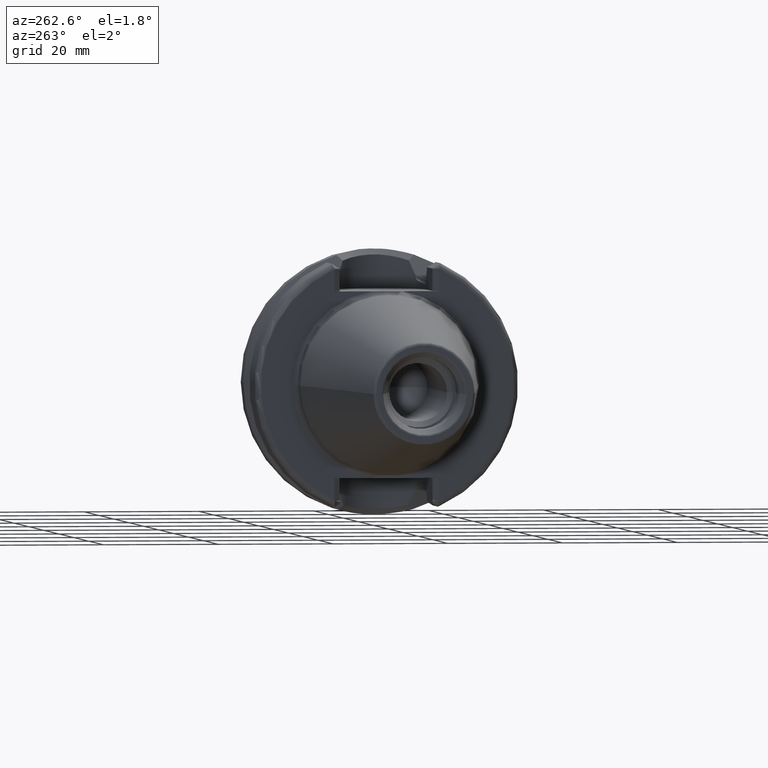
[diagram: clean part render]
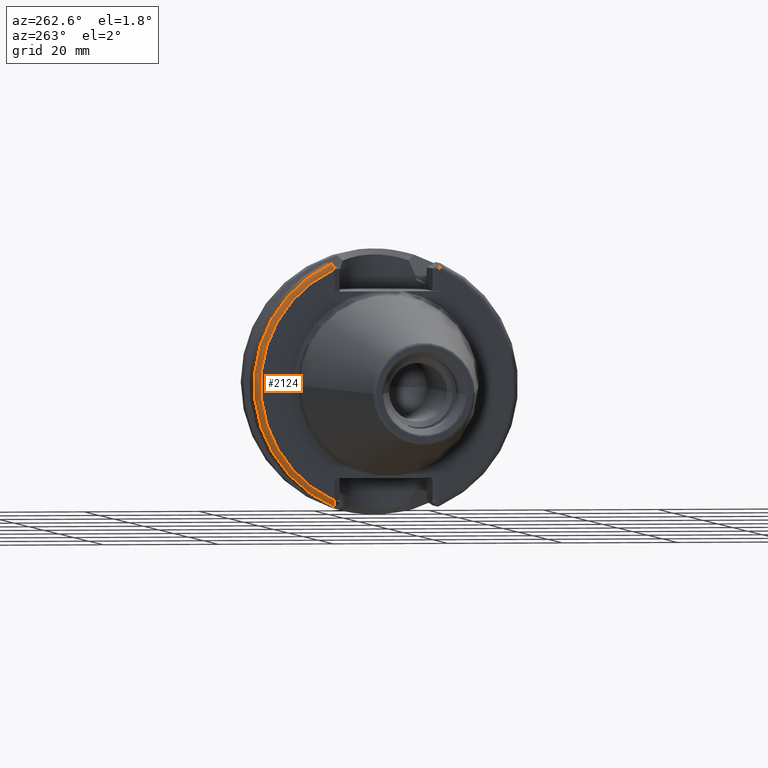
[diagram: same view with one face highlighted and labeled with its STEP entity id]
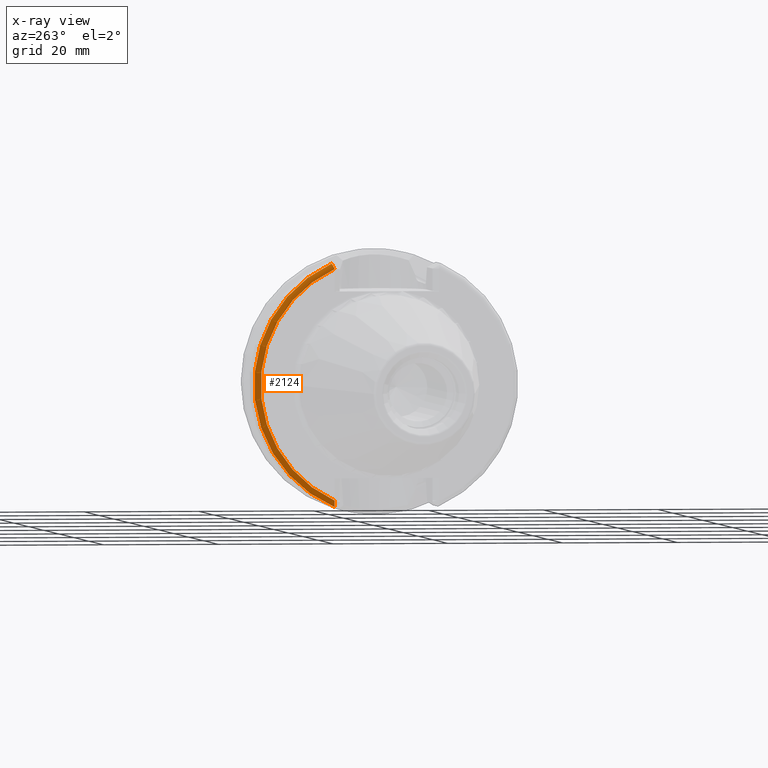
[diagram: x-ray of the same camera — body ghosted, the highlighted face saturated]
A machine part, auxiliary view. The second image highlights one B-rep face of the part: STEP entity #2124.
The next image is the same camera in x-ray: the body ghosted, the highlighted face saturated — about 0% of this face is hidden behind the body in this view.
In plain terms, the highlighted toroidal blend (fillet) surface has major radius 21.99 mm and minor (blend) radius 1 mm.
Its self-contained STEP definition (entity closure, byte-faithful):
#208=CARTESIAN_POINT('',(3.E0,0.E0,0.E0));
#209=DIRECTION('',(-1.E0,0.E0,0.E0));
#210=DIRECTION('',(0.E0,4.135970895862E-1,9.104600197075E-1));
#211=AXIS2_PLACEMENT_3D('',#208,#209,#210);
#582=CARTESIAN_POINT('',(2.999999972701E0,9.014923952472E0,-2.114877606078E1));
#583=CARTESIAN_POINT('',(2.933097251829E0,9.014825251737E0,-2.114881813308E1));
#584=CARTESIAN_POINT('',(2.795803887151E0,9.016909789050E0,-2.113328869981E1));
#585=CARTESIAN_POINT('',(2.588906338275E0,9.027264868146E0,-2.105716666242E1));
#586=CARTESIAN_POINT('',(2.392094966935E0,9.042998101945E0,-2.092484818033E1));
#587=CARTESIAN_POINT('',(2.221538303973E0,9.062314818954E0,-2.073904340004E1));
#588=CARTESIAN_POINT('',(2.092087566475E0,9.080100772535E0,-2.051147418015E1));
#589=CARTESIAN_POINT('',(2.015160945499E0,9.092440013760E0,-2.026137427142E1));
#590=CARTESIAN_POINT('',(1.999981632272E0,9.095135000913E0,-2.009973987014E1));
#591=CARTESIAN_POINT('',(1.999981632272E0,9.094981630699E0,-2.002101423194E1));
#593=CARTESIAN_POINT('',(3.E0,9.095023821283E0,2.002100501199E1));
#594=DIRECTION('',(0.E0,9.104595276032E-1,-4.135981728642E-1));
#595=DIRECTION('',(-1.E0,-6.437517185987E-12,-1.417177486474E-11));
#596=AXIS2_PLACEMENT_3D('',#593,#594,#595);
#598=CARTESIAN_POINT('',(2.E0,0.E0,0.E0));
#599=DIRECTION('',(-1.E0,0.E0,0.E0));
#600=DIRECTION('',(0.E0,4.135972556779E-1,9.104599442566E-1));
#601=AXIS2_PLACEMENT_3D('',#598,#599,#600);
#1396=CARTESIAN_POINT('',(2.E0,9.095023821277E0,2.002100501198E1));
#1397=CARTESIAN_POINT('',(3.E0,9.508621994147E0,2.093146453960E1));
#1398=VERTEX_POINT('',#1396);
#1399=VERTEX_POINT('',#1397);
#1410=CARTESIAN_POINT('',(1.999981632272E0,9.094981630699E0,-2.002101423194E1));
#1412=VERTEX_POINT('',#1410);
#1414=VERTEX_POINT('',#582);
#2111=CARTESIAN_POINT('',(3.E0,0.E0,0.E0));
#2112=DIRECTION('',(1.E0,0.E0,0.E0));
#2113=DIRECTION('',(0.E0,-1.E0,0.E0));
#2114=AXIS2_PLACEMENT_3D('',#2111,#2112,#2113);
#2115=TOROIDAL_SURFACE('',#2114,2.199E1,1.E0);
#2117=ORIENTED_EDGE('',*,*,#2116,.F.);
#2118=ORIENTED_EDGE('',*,*,#1763,.F.);
#2120=ORIENTED_EDGE('',*,*,#2119,.F.);
#2121=ORIENTED_EDGE('',*,*,#1627,.T.);
#2122=EDGE_LOOP('',(#2117,#2118,#2120,#2121));
#2123=FACE_OUTER_BOUND('',#2122,.F.);
#2124=ADVANCED_FACE('',(#2123),#2115,.T.);
#212=CIRCLE('',#211,2.299E1);
#592=B_SPLINE_CURVE_WITH_KNOTS('',3,(#582,#583,#584,#585,#586,#587,#588,#589,
#590,#591),.UNSPECIFIED.,.F.,.F.,(4,1,1,1,1,1,1,4),(0.E0,1.428571428571E-1,
2.857142857143E-1,4.285714285714E-1,5.714285714286E-1,7.142857142857E-1,
8.571428571429E-1,1.E0),.UNSPECIFIED.);
#597=CIRCLE('',#596,1.E0);
#602=CIRCLE('',#601,2.199E1);
#1627=EDGE_CURVE('',#1398,#1412,#602,.T.);
#1763=EDGE_CURVE('',#1399,#1414,#212,.T.);
#2116=EDGE_CURVE('',#1414,#1412,#592,.T.);
#2119=EDGE_CURVE('',#1398,#1399,#597,.T.);